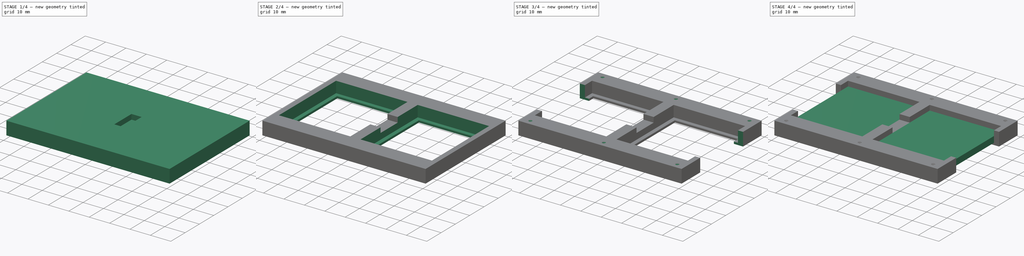
[diagram: build sequence overview — one tinted view per stage of 4, left to right]
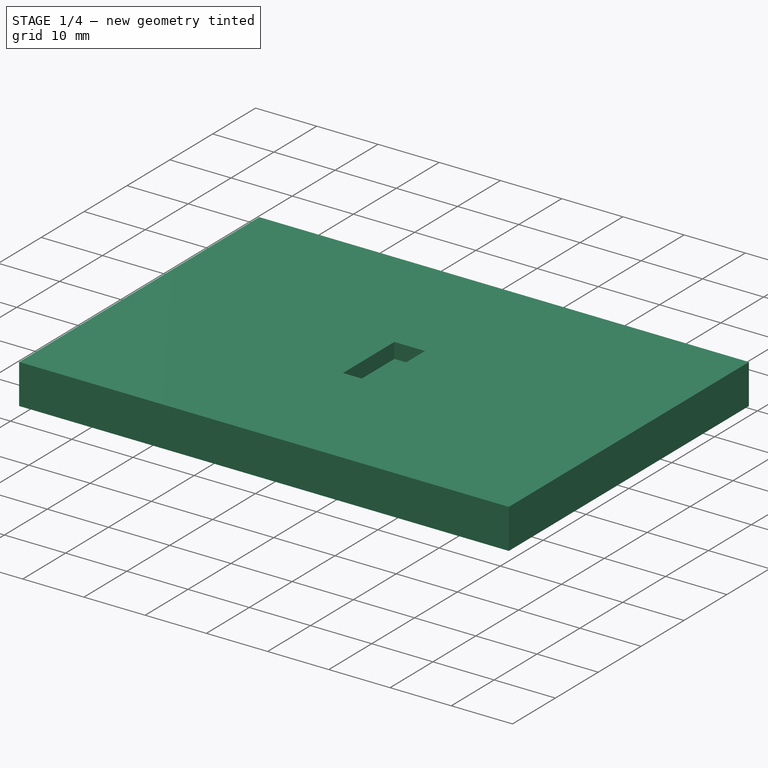
[diagram: stage 1 of 4 — iso view after this stage's code; geometry added in this stage tinted green]
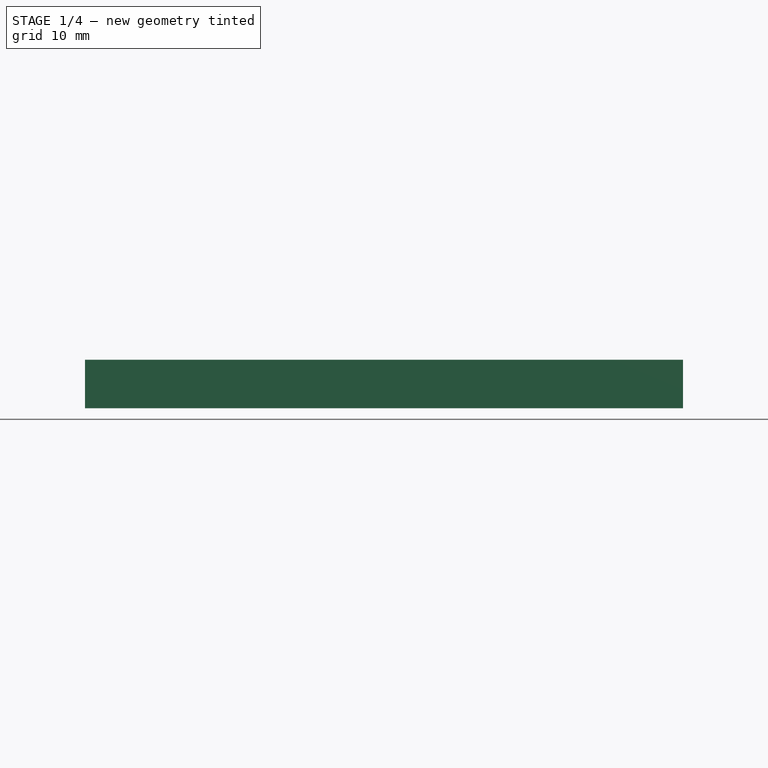
[diagram: stage 1 of 4 — front view after this stage's code; geometry added in this stage tinted green]
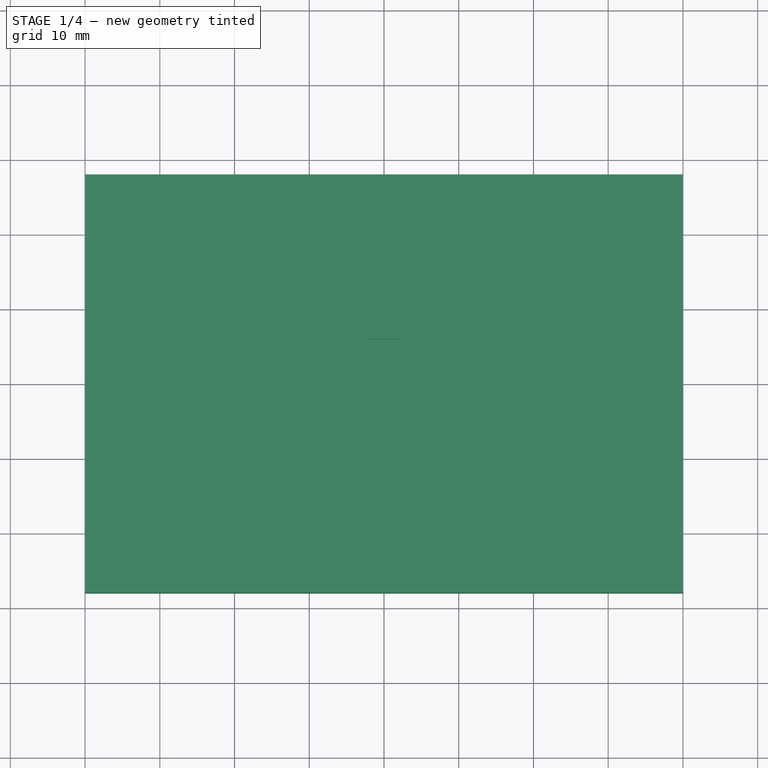
[diagram: stage 1 of 4 — top view after this stage's code; geometry added in this stage tinted green]
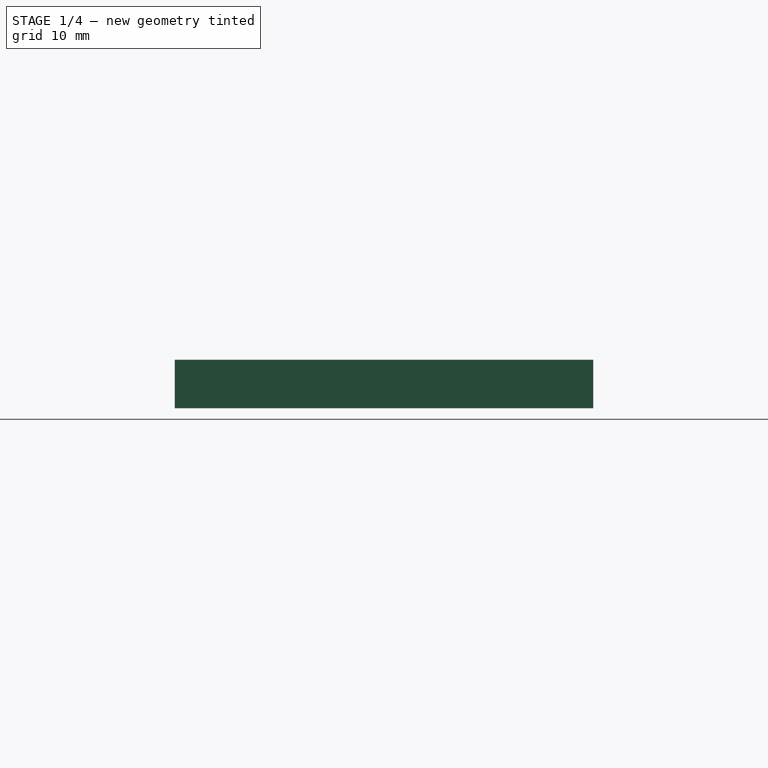
[diagram: stage 1 of 4 — right view after this stage's code; geometry added in this stage tinted green]
FCSTD DOCUMENT  (FreeCAD 0.21R33771 (Git))
Label: CarcasaV3
License: All rights reserved
LicenseURL: http://en.wikipedia.org/wiki/All_rights_reserved
objects: Sketcher::SketchObject×8, PartDesign::Pocket×5, PartDesign::Body×3, Part::Extrusion×2, PartDesign::Pad×1, PartDesign::Hole×1
note: 27 computed .brp shape members not serialized (recipe doc carries the construction recipe); baked Part::Feature solids carry a one-line shape summary decoded from their .brp

FEATURE [Sketcher::SketchObject] Sketch
  FullyConstrained = true
  MapMode = 5
  Support = -> [XY_Plane]
  sketch-geometry (5):
    g0: LineSegment StartX=-40 StartY=-28 StartZ=0 EndX=-40 EndY=28 EndZ=0
    g1: LineSegment StartX=-40 StartY=28 StartZ=0 EndX=40 EndY=28 EndZ=0
    g2: LineSegment StartX=40 StartY=28 StartZ=0 EndX=40 EndY=-28 EndZ=0
    g3: LineSegment StartX=40 StartY=-28 StartZ=0 EndX=-40 EndY=-28 EndZ=0
    g4: GeomPoint X=0 Y=0 Z=0
  constraints (12):
    c: Coincident(g0,g1)
    c: Coincident(g1,g2)
    c: Coincident(g2,g3)
    c: Coincident(g3,g0)
    c: Horizontal(g1)
    c: Horizontal(g3)
    c: Vertical(g0)
    c: Vertical(g2)
    c: Symmetric(g1,g0,g4)
    c: Coincident(g4,g-1)
    c: Distance(g2) = 56
    c: Distance(g1) = 80
FEATURE [PartDesign::Pad] Pad
  Direction = (0,0,1)
  Length = 6.5
  Length2 = 10
  Profile = -> Sketch
  ReferenceAxis = -> Sketch [N_Axis]
  Type = 0
FEATURE [Sketcher::SketchObject] Sketch001
  FullyConstrained = true
  MapMode = 5
  Placement = pos=(0,0,6.5) rot=(0,0,1;0rad)
  Support = -> [Pad]
  sketch-geometry (5):
    g0: LineSegment StartX=-2.5 StartY=-6 StartZ=0 EndX=-2.5 EndY=6 EndZ=0
    g1: LineSegment StartX=-2.5 StartY=6 StartZ=0 EndX=2.5 EndY=6 EndZ=0
    g2: LineSegment StartX=2.5 StartY=6 StartZ=0 EndX=2.5 EndY=-6 EndZ=0
    g3: LineSegment StartX=2.5 StartY=-6 StartZ=0 EndX=-2.5 EndY=-6 EndZ=0
    g4: GeomPoint X=0 Y=0 Z=0
  constraints (12):
    c: Coincident(g0,g1)
    c: Coincident(g1,g2)
    c: Coincident(g2,g3)
    c: Coincident(g3,g0)
    c: Horizontal(g1)
    c: Horizontal(g3)
    c: Vertical(g0)
    c: Vertical(g2)
    c: Symmetric(g1,g0,g4)
    c: Coincident(g4,g-1)
    c: Distance(g2) = 12
    c: Distance(g1) = 5
FEATURE [PartDesign::Pocket] Pocket
  BaseFeature = -> Pad
  Direction = (0,0,-1)
  Length = 2.5
  Length2 = 5
  Profile = -> Sketch001
  ReferenceAxis = -> Sketch001 [N_Axis]
  Type = 0
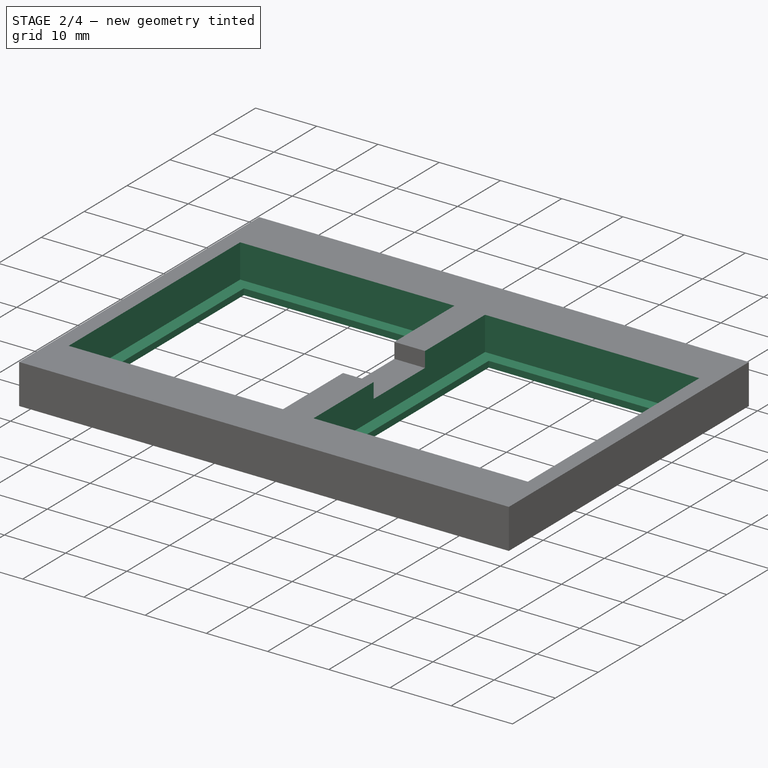
[diagram: stage 2 of 4 — iso view after this stage's code; geometry added in this stage tinted green]
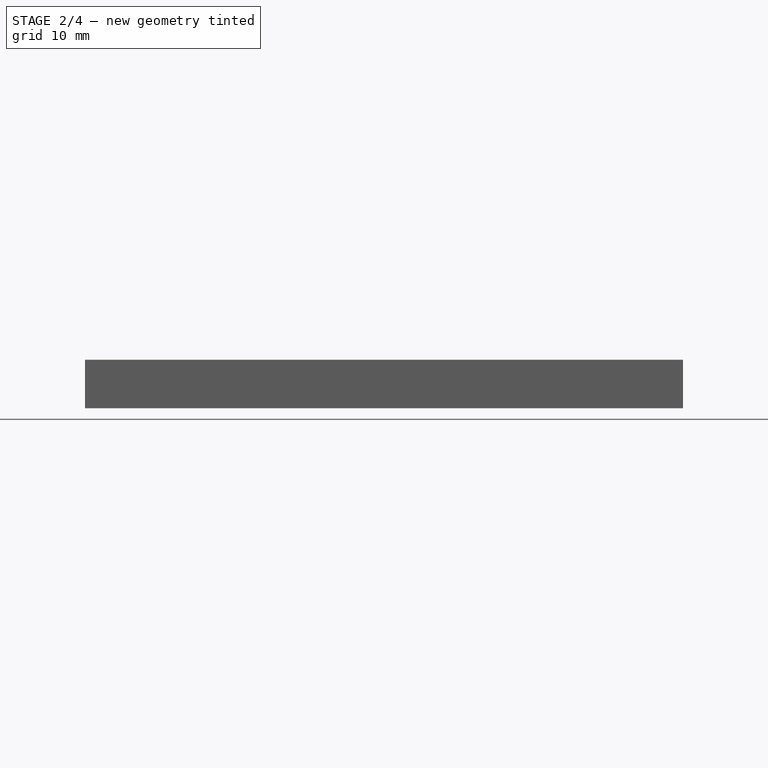
[diagram: stage 2 of 4 — front view after this stage's code; geometry added in this stage tinted green]
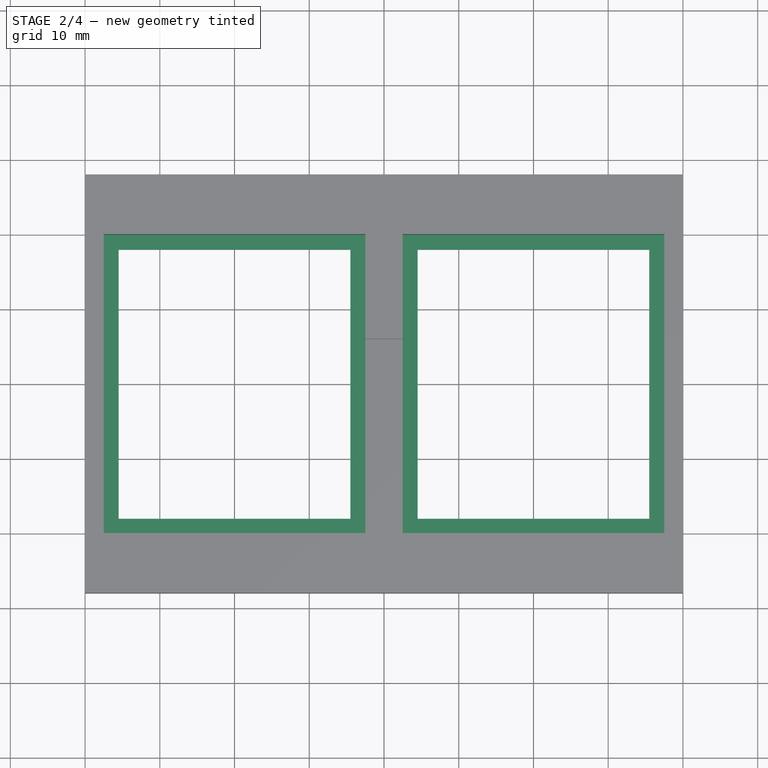
[diagram: stage 2 of 4 — top view after this stage's code; geometry added in this stage tinted green]
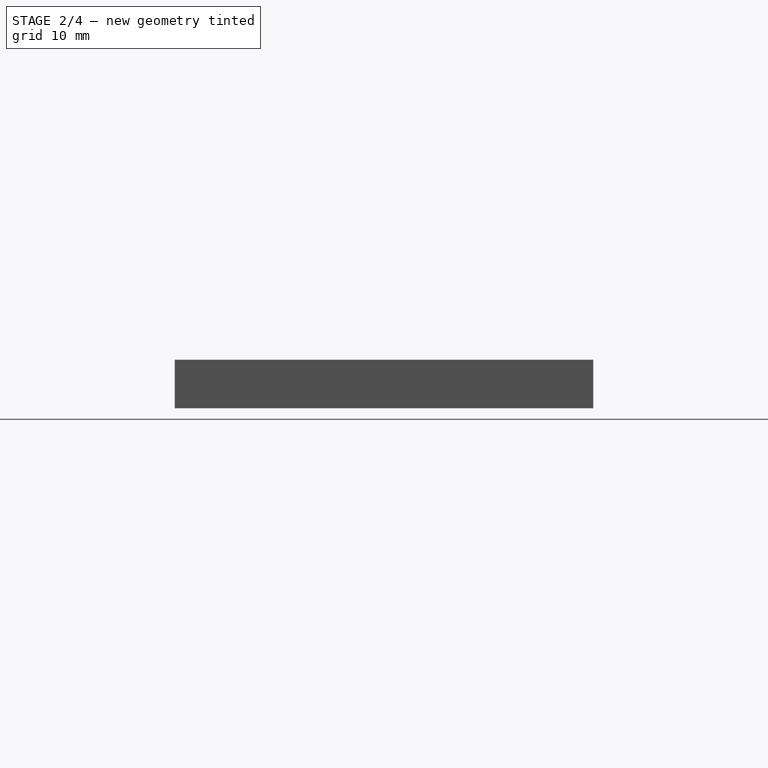
[diagram: stage 2 of 4 — right view after this stage's code; geometry added in this stage tinted green]
FEATURE [Sketcher::SketchObject] Sketch002
  FullyConstrained = true
  MapMode = 5
  Placement = pos=(0,0,6.5) rot=(0,0,1;0rad)
  Support = -> [Pocket]
  sketch-geometry (10):
    g0: LineSegment StartX=-37.5 StartY=-20 StartZ=0 EndX=-37.5 EndY=20 EndZ=0
    g1: LineSegment StartX=-37.5 StartY=20 StartZ=0 EndX=-2.5 EndY=20 EndZ=0
    g2: LineSegment StartX=-2.5 StartY=20 StartZ=0 EndX=-2.5 EndY=-20 EndZ=0
    g3: LineSegment StartX=-2.5 StartY=-20 StartZ=0 EndX=-37.5 EndY=-20 EndZ=0
    g4: GeomPoint X=-20 Y=0 Z=0
    g5: LineSegment StartX=2.5 StartY=-20 StartZ=0 EndX=2.5 EndY=20 EndZ=0
    g6: LineSegment StartX=2.5 StartY=20 StartZ=0 EndX=37.5 EndY=20 EndZ=0
    g7: LineSegment StartX=37.5 StartY=20 StartZ=0 EndX=37.5 EndY=-20 EndZ=0
    g8: LineSegment StartX=37.5 StartY=-20 StartZ=0 EndX=2.5 EndY=-20 EndZ=0
    g9: GeomPoint X=20 Y=0 Z=0
  constraints (26):
    c: Coincident(g0,g1)
    c: Coincident(g1,g2)
    c: Coincident(g2,g3)
    c: Coincident(g3,g0)
    c: Horizontal(g1)
    c: Horizontal(g3)
    c: Vertical(g0)
    c: Vertical(g2)
    c: Symmetric(g1,g0,g4)
    c: PointOnObject(g4,g-1)
    c: Coincident(g5,g6)
    c: Coincident(g6,g7)
    c: Coincident(g7,g8)
    c: Coincident(g8,g5)
    c: Horizontal(g6)
    c: Horizontal(g8)
    c: Vertical(g5)
    c: Vertical(g7)
    c: Symmetric(g6,g5,g9)
    c: PointOnObject(g9,g-1)
    c: Distance(g1) = 35
    c: Distance(g2) = 40
    c: Distance(g4,g-2) = 20
    c: Distance(g6) = 35
    c: Distance(g7) = 40
    c: Distance(g9,g-2) = 20
FEATURE [PartDesign::Pocket] Pocket001
  BaseFeature = -> Pocket
  Direction = (0,0,-1)
  Length = 5.5
  Length2 = 5
  Profile = -> Sketch002
  ReferenceAxis = -> Sketch002 [N_Axis]
  Type = 0
FEATURE [Sketcher::SketchObject] Sketch003
  FullyConstrained = true
  MapMode = 5
  Placement = pos=(0,0,1) rot=(0,0,1;0rad)
  Support = -> [Pocket001]
  sketch-geometry (10):
    g0: LineSegment StartX=-35.5 StartY=-18 StartZ=0 EndX=-35.5 EndY=18 EndZ=0
    g1: LineSegment StartX=-35.5 StartY=18 StartZ=0 EndX=-4.5 EndY=18 EndZ=0
    g2: LineSegment StartX=-4.5 StartY=18 StartZ=0 EndX=-4.5 EndY=-18 EndZ=0
    g3: LineSegment StartX=-4.5 StartY=-18 StartZ=0 EndX=-35.5 EndY=-18 EndZ=0
    g4: GeomPoint X=-20 Y=-1e-16 Z=0
    g5: LineSegment StartX=4.5 StartY=-18 StartZ=0 EndX=4.5 EndY=18 EndZ=0
    g6: LineSegment StartX=4.5 StartY=18 StartZ=0 EndX=35.5 EndY=18 EndZ=0
    g7: LineSegment StartX=35.5 StartY=18 StartZ=0 EndX=35.5 EndY=-18 EndZ=0
    g8: LineSegment StartX=35.5 StartY=-18 StartZ=0 EndX=4.5 EndY=-18 EndZ=0
    g9: GeomPoint X=20 Y=0 Z=0
  constraints (26):
    c: Coincident(g0,g1)
    c: Coincident(g1,g2)
    c: Coincident(g2,g3)
    c: Coincident(g3,g0)
    c: Horizontal(g1)
    c: Horizontal(g3)
    c: Vertical(g0)
    c: Vertical(g2)
    c: Symmetric(g1,g0,g4)
    c: PointOnObject(g4,g-1)
    c: Coincident(g5,g6)
    c: Coincident(g6,g7)
    c: Coincident(g7,g8)
    c: Coincident(g8,g5)
    c: Horizontal(g6)
    c: Horizontal(g8)
    c: Vertical(g5)
    c: Vertical(g7)
    c: Symmetric(g6,g5,g9)
    c: PointOnObject(g9,g-1)
    c: Distance(g4,g-2) = 20
    c: Distance(g9,g-2) = 20
    c: Distance(g1) = 31
    c: Distance(g2) = 36
    c: Distance(g6) = 31
    c: Distance(g7) = 36
FEATURE [PartDesign::Pocket] Pocket002
  BaseFeature = -> Pocket001
  Direction = (0,0,-1)
  Length = 1
  Length2 = 5
  Profile = -> Sketch003
  ReferenceAxis = -> Sketch003 [N_Axis]
  Type = 0
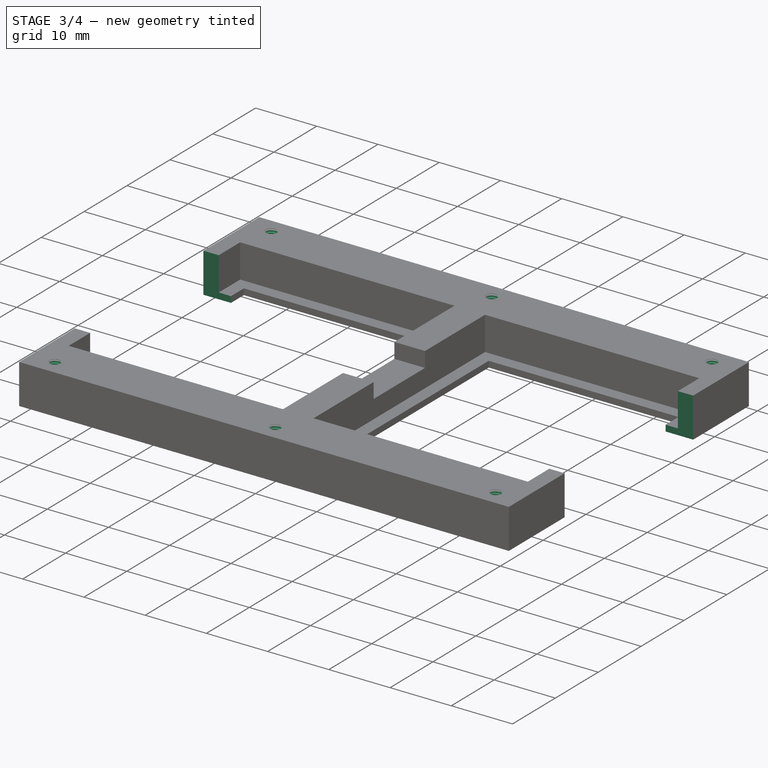
[diagram: stage 3 of 4 — iso view after this stage's code; geometry added in this stage tinted green]
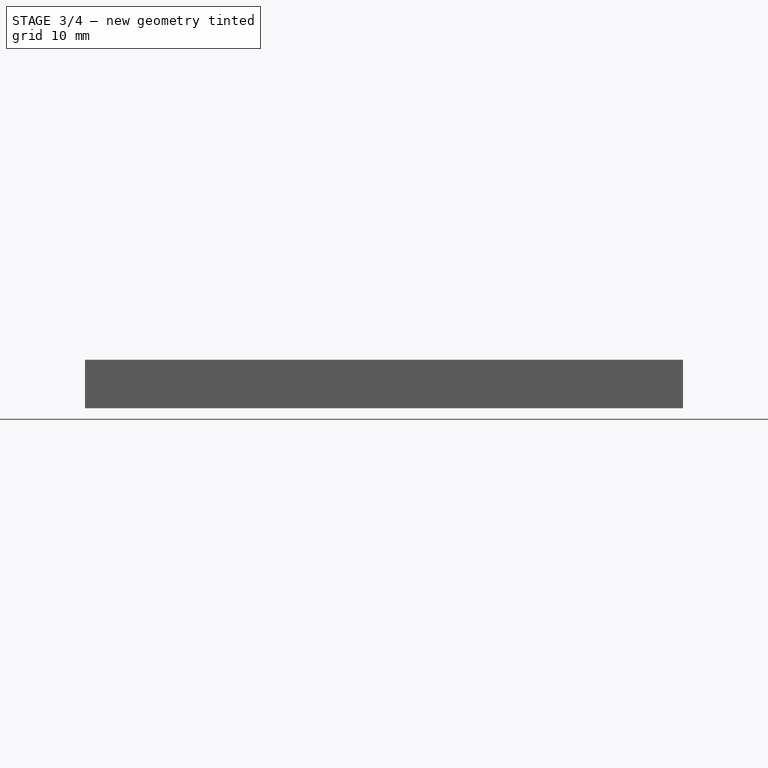
[diagram: stage 3 of 4 — front view after this stage's code; geometry added in this stage tinted green]
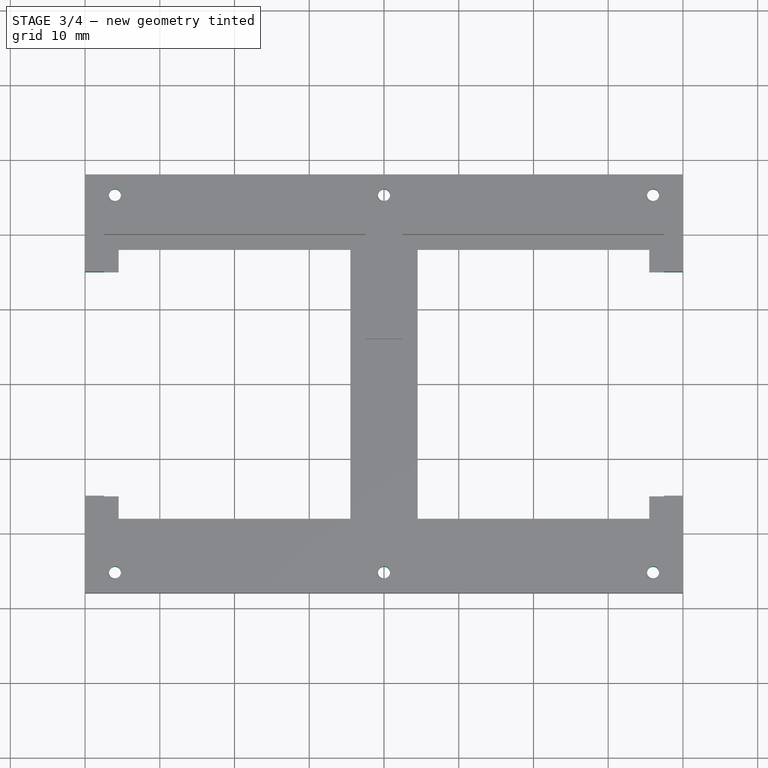
[diagram: stage 3 of 4 — top view after this stage's code; geometry added in this stage tinted green]
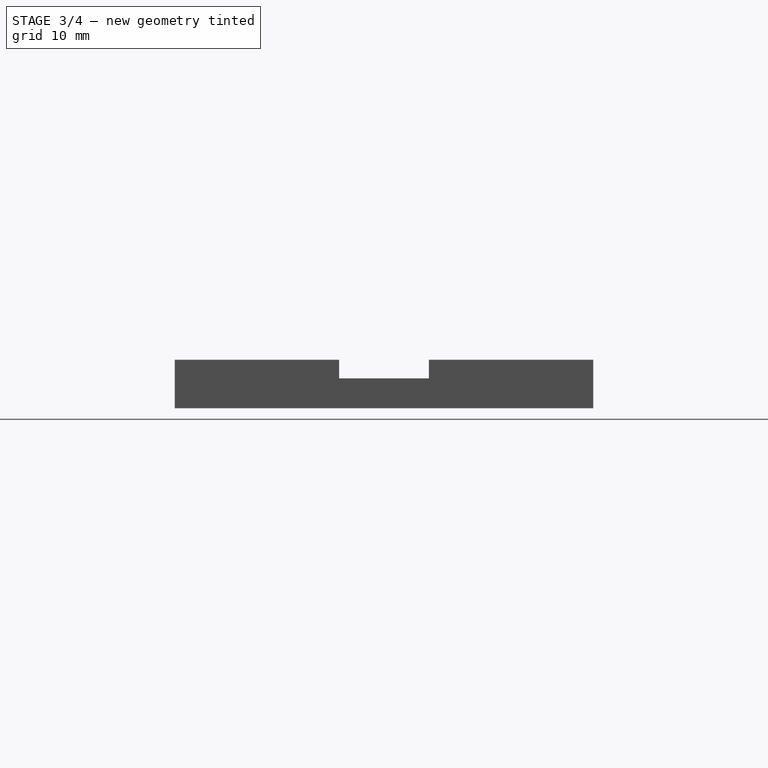
[diagram: stage 3 of 4 — right view after this stage's code; geometry added in this stage tinted green]
FEATURE [Sketcher::SketchObject] Sketch004
  FullyConstrained = true
  MapMode = 5
  Placement = pos=(0,0,6.5) rot=(0,0,1;0rad)
  Support = -> [Pocket002]
  sketch-geometry (6):
    g0: Circle CenterX=-36 CenterY=25.25 CenterZ=0 NormalX=0 NormalY=0 NormalZ=1 AngleXU=0 Radius=0.5
    g1: Circle CenterX=0 CenterY=25.25 CenterZ=0 NormalX=0 NormalY=0 NormalZ=1 AngleXU=0 Radius=0.5
    g2: Circle CenterX=36 CenterY=25.25 CenterZ=0 NormalX=0 NormalY=0 NormalZ=1 AngleXU=0 Radius=0.5
    g3: Circle CenterX=-36 CenterY=-25.25 CenterZ=0 NormalX=0 NormalY=0 NormalZ=1 AngleXU=0 Radius=0.5
    g4: Circle CenterX=0 CenterY=-25.25 CenterZ=0 NormalX=0 NormalY=0 NormalZ=1 AngleXU=0 Radius=0.5
    g5: Circle CenterX=36 CenterY=-25.25 CenterZ=0 NormalX=0 NormalY=0 NormalZ=1 AngleXU=0 Radius=0.5
  constraints (18):
    c: PointOnObject(g1,g-2)
    c: PointOnObject(g4,g-2)
    c: Horizontal(g0,g1)
    c: Horizontal(g1,g2)
    c: Horizontal(g3,g4)
    c: Horizontal(g4,g5)
    c: Vertical(g0,g3)
    c: Vertical(g2,g5)
    c: Equal(g0,g1)
    c: Equal(g1,g2)
    c: Equal(g2,g5)
    c: Equal(g5,g4)
    c: Equal(g4,g3)
    c: Diameter(g1) = 1
    c: Distance(g1,g-1) = 25.25
    c: Distance(g4,g-1) = 25.25
    c: Distance(g3,g-2) = 36
    c: Distance(g5,g-2) = 36
FEATURE [PartDesign::Pocket] Pocket003
  BaseFeature = -> Pocket002
  Direction = (0,0,-1)
  Length = 6.5
  Length2 = 5
  Profile = -> Sketch004
  ReferenceAxis = -> Sketch004 [N_Axis]
  Type = 0
FEATURE [Sketcher::SketchObject] Sketch005
  FullyConstrained = true
  MapMode = 5
  Placement = pos=(0,0,6.5) rot=(0,0,1;0rad)
  Support = -> [Pocket003]
  sketch-geometry (10):
    g0: LineSegment StartX=-40 StartY=-15 StartZ=0 EndX=-40 EndY=15 EndZ=0
    g1: LineSegment StartX=-40 StartY=15 StartZ=0 EndX=-35.5 EndY=15 EndZ=0
    g2: LineSegment StartX=-35.5 StartY=15 StartZ=0 EndX=-35.5 EndY=-15 EndZ=0
    g3: LineSegment StartX=-35.5 StartY=-15 StartZ=0 EndX=-40 EndY=-15 EndZ=0
    g4: GeomPoint X=-37.75 Y=0 Z=0
    g5: LineSegment StartX=35.5 StartY=-15 StartZ=0 EndX=35.5 EndY=15 EndZ=0
    g6: LineSegment StartX=35.5 StartY=15 StartZ=0 EndX=40 EndY=15 EndZ=0
    g7: LineSegment StartX=40 StartY=15 StartZ=0 EndX=40 EndY=-15 EndZ=0
    g8: LineSegment StartX=40 StartY=-15 StartZ=0 EndX=35.5 EndY=-15 EndZ=0
    g9: GeomPoint X=37.75 Y=0 Z=0
  constraints (26):
    c: Coincident(g0,g1)
    c: Coincident(g1,g2)
    c: Coincident(g2,g3)
    c: Coincident(g3,g0)
    c: Horizontal(g1)
    c: Horizontal(g3)
    c: Vertical(g0)
    c: Vertical(g2)
    c: Symmetric(g1,g0,g4)
    c: PointOnObject(g4,g-1)
    c: Coincident(g5,g6)
    c: Coincident(g6,g7)
    c: Coincident(g7,g8)
    c: Coincident(g8,g5)
    c: Horizontal(g6)
    c: Horizontal(g8)
    c: Vertical(g5)
    c: Vertical(g7)
    c: Symmetric(g6,g5,g9)
    c: PointOnObject(g9,g-1)
    c: Distance(g1) = 4.5
    c: Distance(g6) = 4.5
    c: Distance(g0) = 30
    c: Distance(g7) = 30
    c: Distance(g4,g-2) = 37.75
    c: Distance(g9,g-2) = 37.75
FEATURE [PartDesign::Pocket] Pocket004
  BaseFeature = -> Pocket003
  Direction = (0,0,-1)
  Length = 6.5
  Length2 = 5
  Profile = -> Sketch005
  ReferenceAxis = -> Sketch005 [N_Axis]
  Type = 0
FEATURE [PartDesign::Hole] Hole
  BaseFeature = -> Pocket004
  CustomThreadClearance = 0
  Depth = 25
  DepthType = 0
  Diameter = 1.619
  DrillForDepth = false
  DrillPoint = 1
  DrillPointAngle = 118
  HoleCutCountersinkAngle = 90
  HoleCutCustomValues = false
  HoleCutDepth = 0
  HoleCutDiameter = 6.1
  HoleCutType = 0
  ModelThread = true
  Profile = -> Pocket004 [Edge89,Edge91,Edge93,Edge46,Edge45,Edge44]
  Tapered = false
  TaperedAngle = 90
  ThreadClass = 0
  ThreadDepth = 25
  ThreadDepthType = 0
  ThreadDirection = 0
  ThreadFit = 0
  ThreadSize = 6
  ThreadType = 1
  Threaded = true
  UseCustomThreadClearance = false
FEATURE [PartDesign::Body] Body  label="Cuerpo"
  Group = -> [Sketch,Pad,Sketch001,Pocket,Sketch002,Pocket001,Sketch003,Pocket002,Sketch004,Pocket003,Sketch005,Pocket004,Hole]
  Origin = -> Origin
  Tip = -> Hole
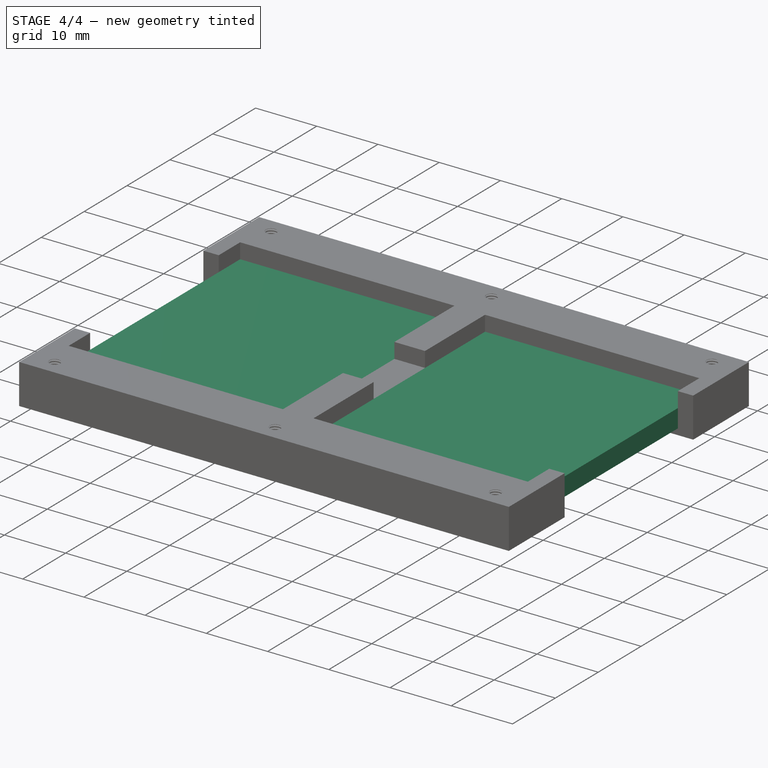
[diagram: stage 4 of 4 — iso view after this stage's code; geometry added in this stage tinted green]
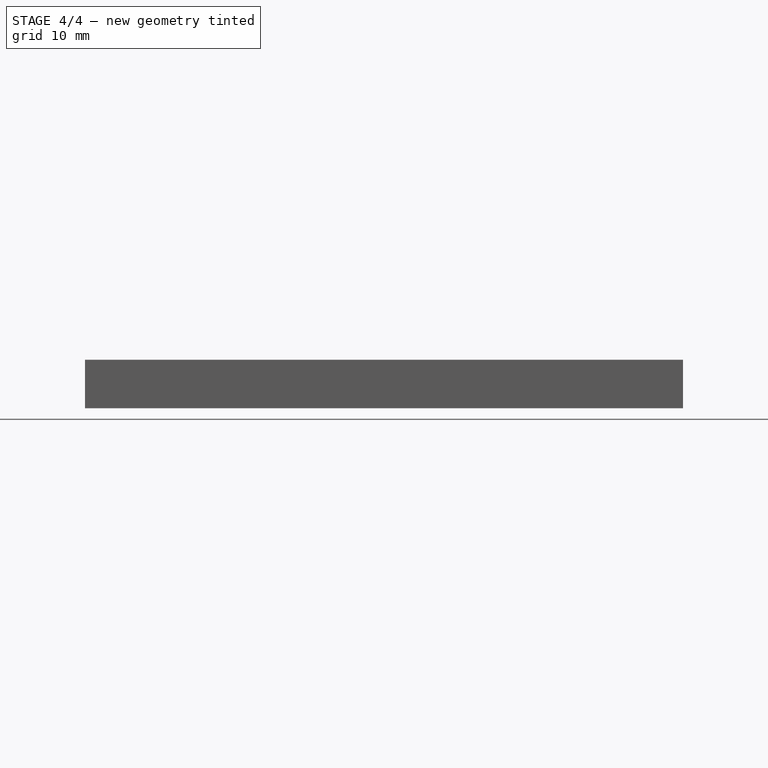
[diagram: stage 4 of 4 — front view after this stage's code; geometry added in this stage tinted green]
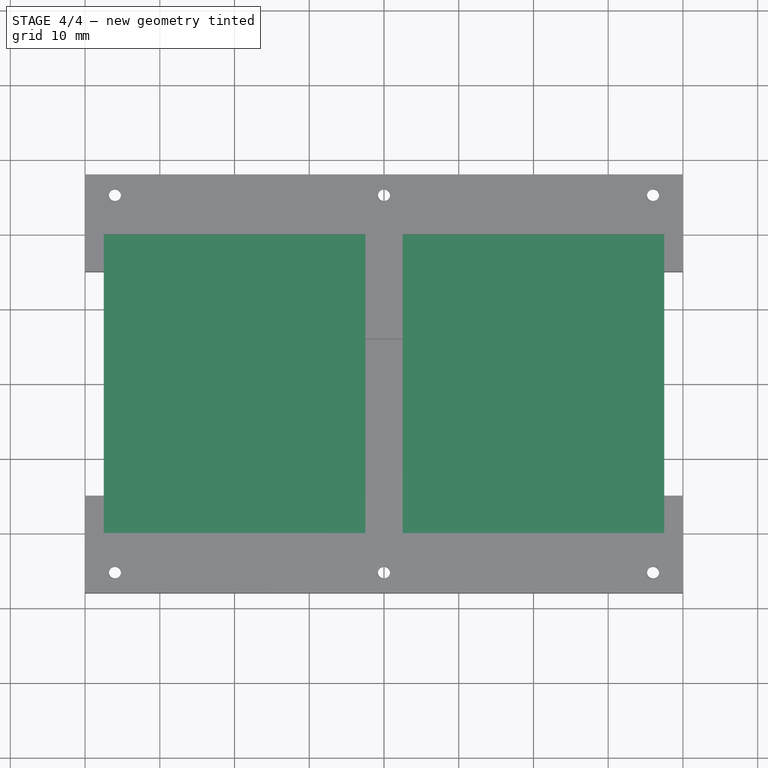
[diagram: stage 4 of 4 — top view after this stage's code; geometry added in this stage tinted green]
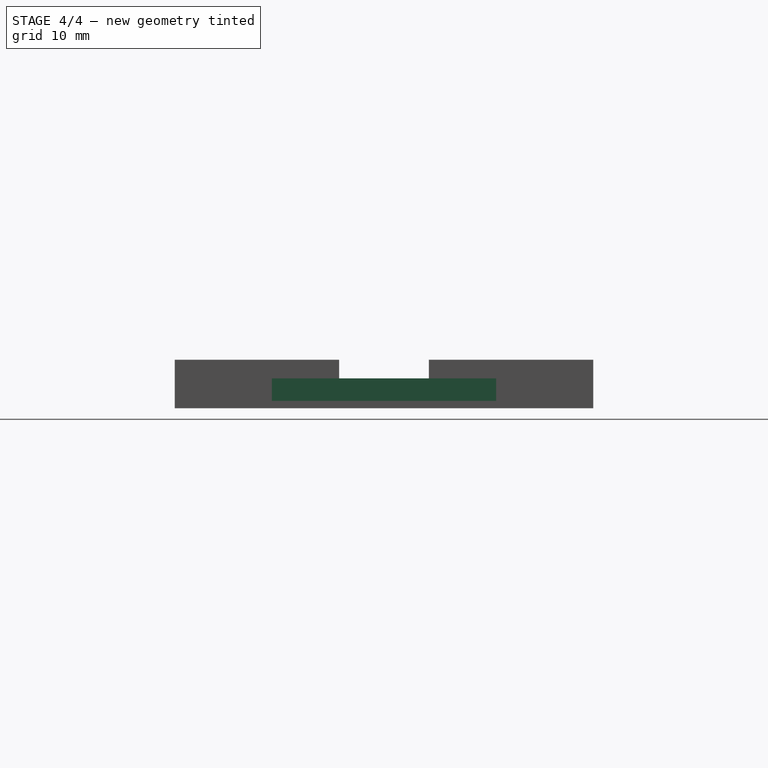
[diagram: stage 4 of 4 — right view after this stage's code; geometry added in this stage tinted green]
FEATURE [Sketcher::SketchObject] Sketch006
  FullyConstrained = true
  MapMode = 5
  Support = -> [XY_Plane001]
  sketch-geometry (5):
    g0: LineSegment StartX=-17.5 StartY=-20 StartZ=0 EndX=-17.5 EndY=20 EndZ=0
    g1: LineSegment StartX=-17.5 StartY=20 StartZ=0 EndX=17.5 EndY=20 EndZ=0
    g2: LineSegment StartX=17.5 StartY=20 StartZ=0 EndX=17.5 EndY=-20 EndZ=0
    g3: LineSegment StartX=17.5 StartY=-20 StartZ=0 EndX=-17.5 EndY=-20 EndZ=0
    g4: GeomPoint X=0 Y=0 Z=0
  constraints (12):
    c: Coincident(g0,g1)
    c: Coincident(g1,g2)
    c: Coincident(g2,g3)
    c: Coincident(g3,g0)
    c: Horizontal(g1)
    c: Horizontal(g3)
    c: Vertical(g0)
    c: Vertical(g2)
    c: Symmetric(g1,g0,g4)
    c: Coincident(g4,g-1)
    c: Distance(g1) = 35
    c: Distance(g2) = 40
FEATURE [PartDesign::Body] Body001  label="Cuerpo001"
  Group = -> [Sketch006]
  Origin = -> Origin001
FEATURE [Part::Extrusion] Extrude
  Base = -> Sketch006
  Dir = (0,0,1)
  DirMode = 2
  FaceMakerClass = Part::FaceMakerBullseye
  LengthFwd = 3
  LengthRev = 0
  Placement = pos=(20,0,1) rot=(0,0,1;0rad)
  Solid = true
  Symmetric = false
FEATURE [Sketcher::SketchObject] Sketch007
  FullyConstrained = true
  MapMode = 5
  Support = -> [XY_Plane002]
  sketch-geometry (5):
    g0: LineSegment StartX=-17.5 StartY=-20 StartZ=0 EndX=-17.5 EndY=20 EndZ=0
    g1: LineSegment StartX=-17.5 StartY=20 StartZ=0 EndX=17.5 EndY=20 EndZ=0
    g2: LineSegment StartX=17.5 StartY=20 StartZ=0 EndX=17.5 EndY=-20 EndZ=0
    g3: LineSegment StartX=17.5 StartY=-20 StartZ=0 EndX=-17.5 EndY=-20 EndZ=0
    g4: GeomPoint X=0 Y=0 Z=0
  constraints (12):
    c: Coincident(g0,g1)
    c: Coincident(g1,g2)
    c: Coincident(g2,g3)
    c: Coincident(g3,g0)
    c: Horizontal(g1)
    c: Horizontal(g3)
    c: Vertical(g0)
    c: Vertical(g2)
    c: Symmetric(g1,g0,g4)
    c: Coincident(g4,g-1)
    c: Distance(g1) = 35
    c: Distance(g2) = 40
FEATURE [PartDesign::Body] Body002  label="Cuerpo002"
  Group = -> [Sketch007]
  Origin = -> Origin002
FEATURE [Part::Extrusion] Extrude001
  Base = -> Sketch007
  Dir = (0,0,1)
  DirMode = 2
  FaceMakerClass = Part::FaceMakerBullseye
  LengthFwd = 3
  LengthRev = 0
  Placement = pos=(-20,0,1) rot=(0,0,1;0rad)
  Solid = true
  Symmetric = false
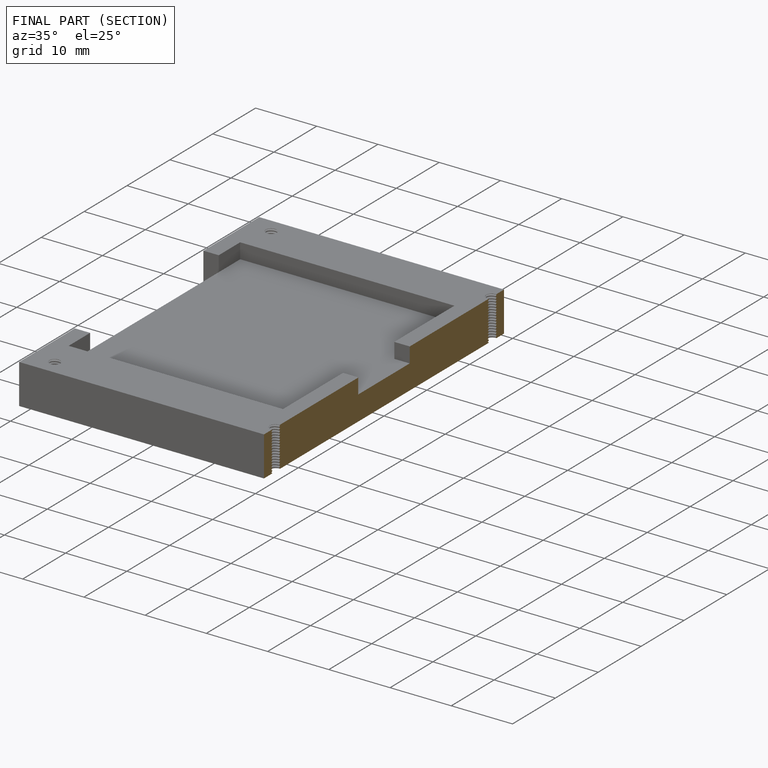
[diagram: finished part — half-section view (interior)]
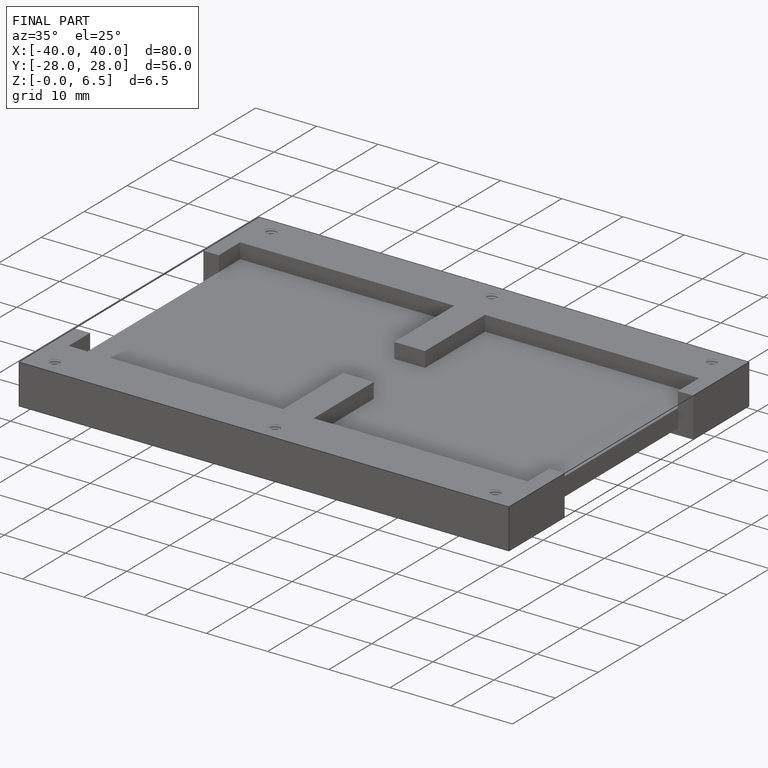
[diagram: finished part — iso view with bounding-box wireframe]
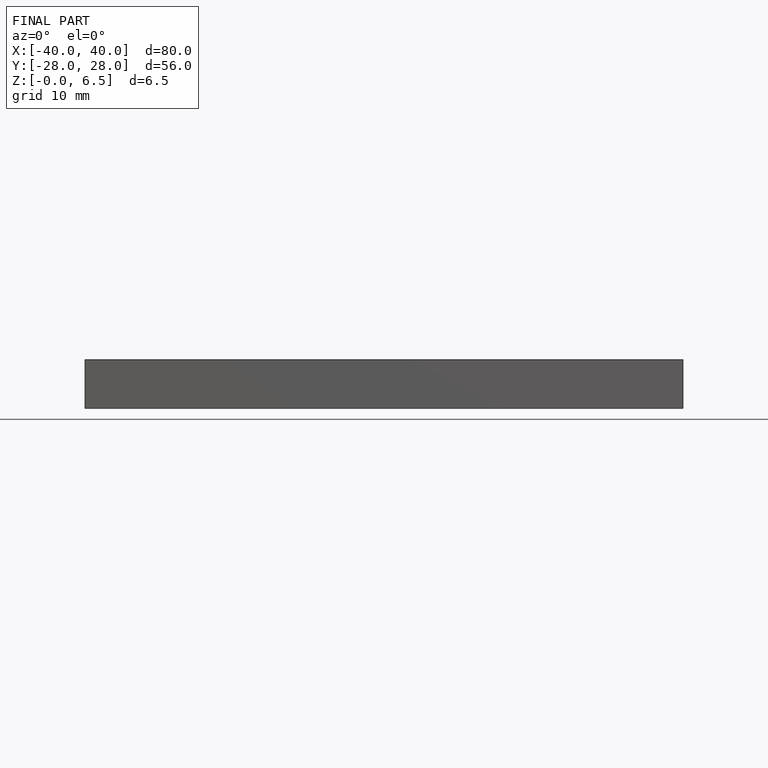
[diagram: finished part — front view with bounding-box wireframe]
